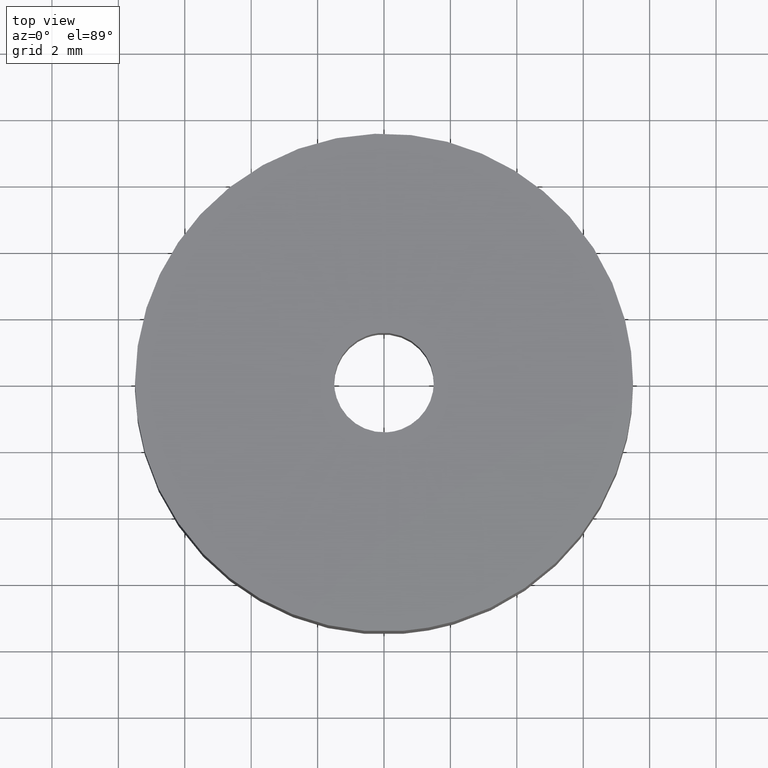
[diagram: clean part render]
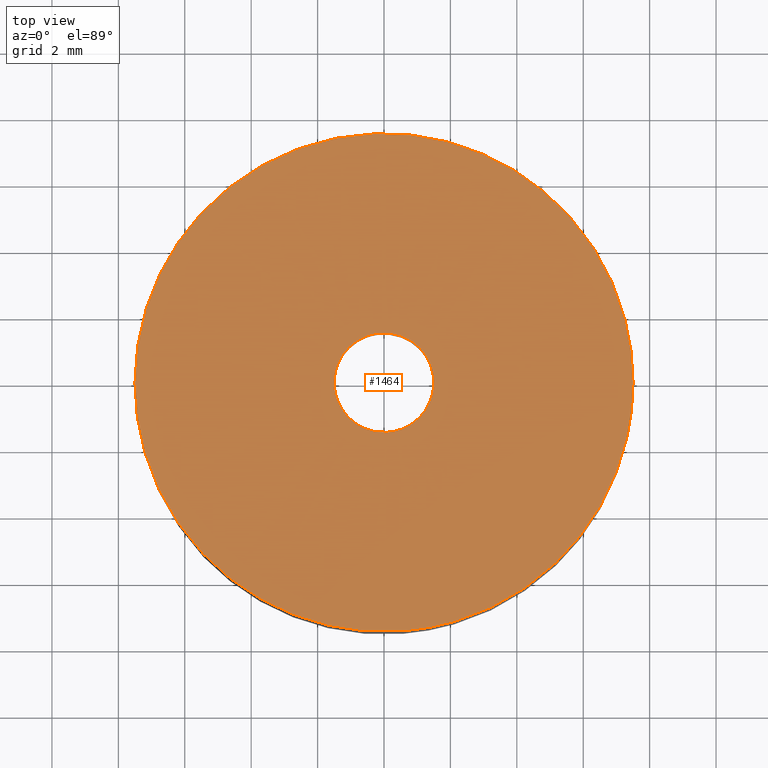
[diagram: same view with one face highlighted and labeled with its STEP entity id]
A machine part, top view. The second image highlights one B-rep face of the part: STEP entity #1464.
In plain terms, the highlighted face is a freeform B-spline surface patch.
Its self-contained STEP definition (entity closure, byte-faithful):
#528=CARTESIAN_POINT('',(7.319767486532108,-1.634320636559426,6.0));
#529=VERTEX_POINT('',#528);
#535=CARTESIAN_POINT('',(0.588438917835223,-7.476880341423037,6.0));
#536=VERTEX_POINT('',#535);
#537=CARTESIAN_POINT('',(7.319767486532108,-1.634320636559426,5.999999999999999));
#538=CARTESIAN_POINT('',(6.112336192034617,-7.042143394217211,6.000000000000001));
#539=CARTESIAN_POINT('',(0.588438917835223,-7.476880341423037,6.0));
#547=(BOUNDED_CURVE()B_SPLINE_CURVE(2,(#537,#538,#539),.UNSPECIFIED.,.F.,.U.)B_SPLINE_CURVE_WITH_KNOTS((3,3),(0.537286561689504,0.736331399222893),.UNSPECIFIED.)CURVE()GEOMETRIC_REPRESENTATION_ITEM()RATIONAL_B_SPLINE_CURVE((0.925662738128303,0.762027682414940,0.969723561921979))REPRESENTATION_ITEM(''));
#548=EDGE_CURVE('',#529,#536,#547,.T.);
#662=CARTESIAN_POINT('',(-7.500000000000000,0.0,6.0));
#663=VERTEX_POINT('',#662);
#664=CARTESIAN_POINT('',(0.588438917835223,-7.476880341423037,6.0));
#665=CARTESIAN_POINT('',(0.294673642518079,-7.500000000000000,5.999999999999999));
#666=CARTESIAN_POINT('',(0.0,-7.500000000000000,6.0));
#667=CARTESIAN_POINT('',(-7.500000000000000,-7.500000000000000,6.0));
#668=CARTESIAN_POINT('',(-7.500000000000000,0.0,6.0));
#676=(BOUNDED_CURVE()B_SPLINE_CURVE(2,(#664,#665,#666,#667,#668),.UNSPECIFIED.,.F.,.U.)B_SPLINE_CURVE_WITH_KNOTS((3,2,3),(0.736331399222893,0.750000000000000,1.0),.UNSPECIFIED.)CURVE()GEOMETRIC_REPRESENTATION_ITEM()RATIONAL_B_SPLINE_CURVE((0.969723561921979,0.983986238086868,1.0,0.707106781186547,1.0))REPRESENTATION_ITEM(''));
#677=EDGE_CURVE('',#536,#663,#676,.T.);
#679=CARTESIAN_POINT('',(7.500000000000000,0.0,6.0));
#680=VERTEX_POINT('',#679);
#681=CARTESIAN_POINT('',(-7.500000000000000,0.0,6.0));
#682=CARTESIAN_POINT('',(-7.500000000000000,7.500000000000000,6.0));
#683=CARTESIAN_POINT('',(0.0,7.500000000000000,6.0));
#684=CARTESIAN_POINT('',(7.500000000000000,7.500000000000000,6.0));
#685=CARTESIAN_POINT('',(7.500000000000000,0.0,6.0));
#693=(BOUNDED_CURVE()B_SPLINE_CURVE(2,(#681,#682,#683,#684,#685),.UNSPECIFIED.,.F.,.U.)B_SPLINE_CURVE_WITH_KNOTS((3,2,3),(0.0,0.250000000000000,0.500000000000000),.UNSPECIFIED.)CURVE()GEOMETRIC_REPRESENTATION_ITEM()RATIONAL_B_SPLINE_CURVE((1.0,0.707106781186547,1.0,0.707106781186547,1.0))REPRESENTATION_ITEM(''));
#694=EDGE_CURVE('',#663,#680,#693,.T.);
#696=CARTESIAN_POINT('',(7.500000000000000,0.0,6.0));
#697=CARTESIAN_POINT('',(7.500000000000000,-0.827098318872834,6.000000000000002));
#698=CARTESIAN_POINT('',(7.319767486532108,-1.634320636559426,5.999999999999999));
#706=(BOUNDED_CURVE()B_SPLINE_CURVE(2,(#696,#697,#698),.UNSPECIFIED.,.F.,.U.)B_SPLINE_CURVE_WITH_KNOTS((3,3),(0.500000000000000,0.537286561689504),.UNSPECIFIED.)CURVE()GEOMETRIC_REPRESENTATION_ITEM()RATIONAL_B_SPLINE_CURVE((1.0,0.956316075713099,0.925662738128303))REPRESENTATION_ITEM(''));
#707=EDGE_CURVE('',#680,#529,#706,.T.);
#735=CARTESIAN_POINT('',(-0.177051352002078,1.489514289543486,6.0));
#736=VERTEX_POINT('',#735);
#737=CARTESIAN_POINT('',(1.500000000000000,0.0,6.0));
#738=VERTEX_POINT('',#737);
#739=CARTESIAN_POINT('',(-0.177051352002078,1.489514289543485,6.0));
#740=CARTESIAN_POINT('',(-0.088836179494984,1.500000000000000,6.0));
#741=CARTESIAN_POINT('',(0.0,1.500000000000000,6.0));
#742=CARTESIAN_POINT('',(1.500000000000000,1.500000000000000,6.0));
#743=CARTESIAN_POINT('',(1.500000000000000,0.0,6.0));
#751=(BOUNDED_CURVE()B_SPLINE_CURVE(2,(#739,#740,#741,#742,#743),.UNSPECIFIED.,.F.,.U.)B_SPLINE_CURVE_WITH_KNOTS((3,2,3),(0.229562473511800,0.250000000000000,0.500000000000000),.UNSPECIFIED.)CURVE()GEOMETRIC_REPRESENTATION_ITEM()RATIONAL_B_SPLINE_CURVE((0.956026754180351,0.976055948329144,1.0,0.707106781186548,1.0))REPRESENTATION_ITEM(''));
#752=EDGE_CURVE('',#736,#738,#751,.T.);
#793=CARTESIAN_POINT('',(0.091572609797274,-1.497202209835023,6.0));
#794=VERTEX_POINT('',#793);
#800=CARTESIAN_POINT('',(1.500000000000000,0.0,6.0));
#801=CARTESIAN_POINT('',(1.500000000000000,-1.411059477113870,6.0));
#802=CARTESIAN_POINT('',(0.091572609797274,-1.497202209835023,6.0));
#810=(BOUNDED_CURVE()B_SPLINE_CURVE(2,(#800,#801,#802),.UNSPECIFIED.,.F.,.U.)B_SPLINE_CURVE_WITH_KNOTS((3,3),(0.500000000000000,0.739333008226339),.UNSPECIFIED.)CURVE()GEOMETRIC_REPRESENTATION_ITEM()RATIONAL_B_SPLINE_CURVE((1.0,0.719603939409124,0.976072140226481))REPRESENTATION_ITEM(''));
#811=EDGE_CURVE('',#738,#794,#810,.T.);
#834=CARTESIAN_POINT('',(-1.500000000000000,0.0,6.0));
#835=VERTEX_POINT('',#834);
#836=CARTESIAN_POINT('',(-1.500000000000000,0.0,6.0));
#837=CARTESIAN_POINT('',(-1.500000000000000,1.332261788896535,6.0));
#838=CARTESIAN_POINT('',(-0.177051352002078,1.489514289543485,6.0));
#846=(BOUNDED_CURVE()B_SPLINE_CURVE(2,(#836,#837,#838),.UNSPECIFIED.,.F.,.U.)B_SPLINE_CURVE_WITH_KNOTS((3,3),(0.0,0.229562473511800),.UNSPECIFIED.)CURVE()GEOMETRIC_REPRESENTATION_ITEM()RATIONAL_B_SPLINE_CURVE((1.0,0.731050832857404,0.956026754180351))REPRESENTATION_ITEM(''));
#847=EDGE_CURVE('',#835,#736,#846,.T.);
#849=CARTESIAN_POINT('',(0.091572609797274,-1.497202209835022,6.0));
#850=CARTESIAN_POINT('',(0.045828944883482,-1.499999999999999,5.999999999999999));
#851=CARTESIAN_POINT('',(0.0,-1.500000000000000,6.0));
#852=CARTESIAN_POINT('',(-1.500000000000000,-1.500000000000000,6.0));
#853=CARTESIAN_POINT('',(-1.500000000000000,0.0,6.0));
#861=(BOUNDED_CURVE()B_SPLINE_CURVE(2,(#849,#850,#851,#852,#853),.UNSPECIFIED.,.F.,.U.)B_SPLINE_CURVE_WITH_KNOTS((3,2,3),(0.739333008226339,0.750000000000000,1.0),.UNSPECIFIED.)CURVE()GEOMETRIC_REPRESENTATION_ITEM()RATIONAL_B_SPLINE_CURVE((0.976072140226482,0.987502841777424,1.0,0.707106781186548,1.0))REPRESENTATION_ITEM(''));
#862=EDGE_CURVE('',#794,#835,#861,.T.);
#1447=CARTESIAN_POINT('',(8.249249970927089,-8.247064611091464,6.0));
#1448=CARTESIAN_POINT('',(-8.249250373258443,-8.247064611091464,6.0));
#1449=CARTESIAN_POINT('',(8.249249970927089,8.249146407618373,6.0));
#1450=CARTESIAN_POINT('',(-8.249250373258443,8.249146407618373,6.0));
#1451=B_SPLINE_SURFACE_WITH_KNOTS('',1,1,((#1447,#1449),(#1448,#1450)),.UNSPECIFIED.,.F.,.F.,.U.,(2,2),(2,2),(0.0,16.498500344185530),(0.0,16.496211018709840),.UNSPECIFIED.);
#1452=ORIENTED_EDGE('',*,*,#677,.F.);
#1453=ORIENTED_EDGE('',*,*,#548,.F.);
#1454=ORIENTED_EDGE('',*,*,#707,.F.);
#1455=ORIENTED_EDGE('',*,*,#694,.F.);
#1456=EDGE_LOOP('',(#1452,#1453,#1454,#1455));
#1457=FACE_OUTER_BOUND('',#1456,.T.);
#1458=ORIENTED_EDGE('',*,*,#811,.T.);
#1459=ORIENTED_EDGE('',*,*,#862,.T.);
#1460=ORIENTED_EDGE('',*,*,#847,.T.);
#1461=ORIENTED_EDGE('',*,*,#752,.T.);
#1462=EDGE_LOOP('',(#1458,#1459,#1460,#1461));
#1463=FACE_BOUND('',#1462,.T.);
#1464=ADVANCED_FACE('',(#1457,#1463),#1451,.F.);